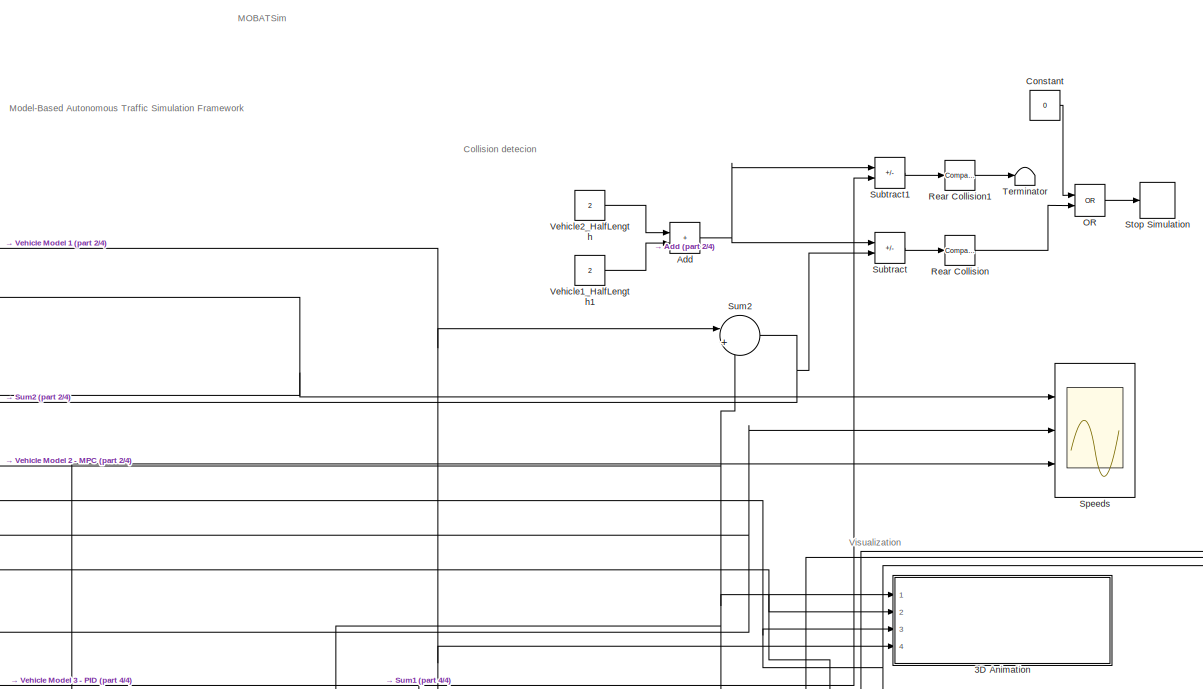
[diagram: root canvas - part 1/4, top center region]
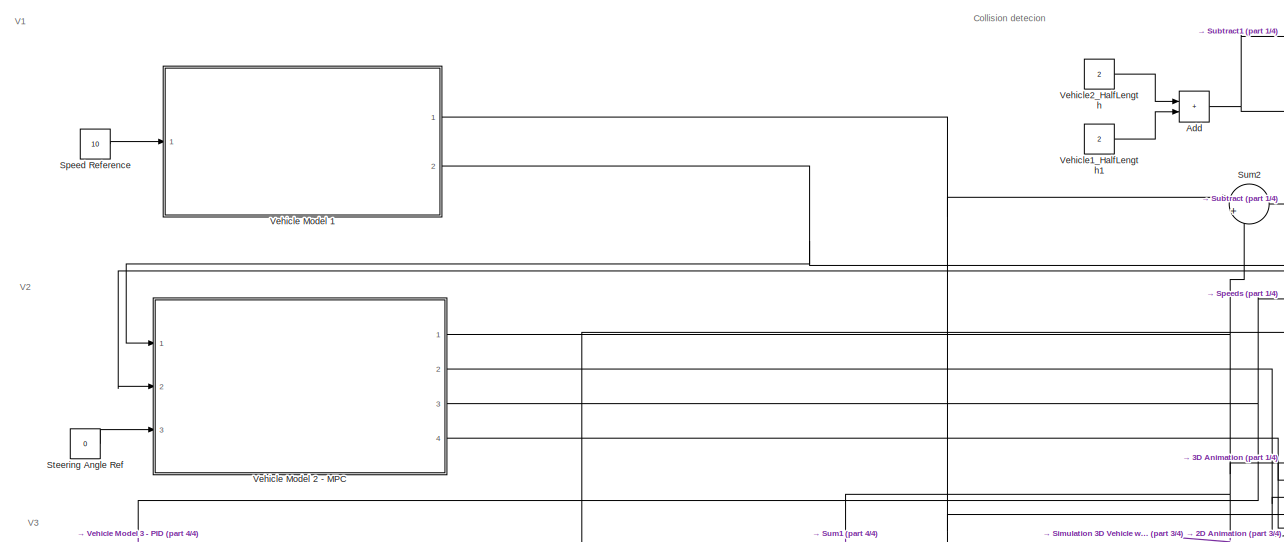
[diagram: root canvas - part 2/4, top left region]
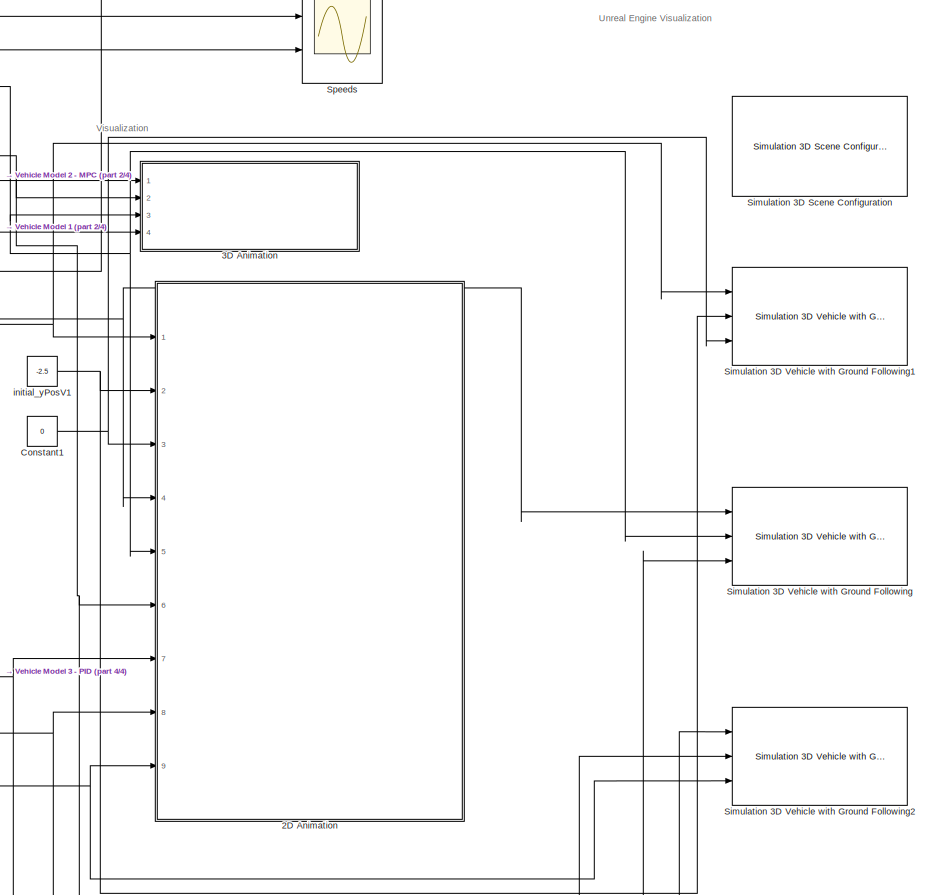
[diagram: root canvas - part 3/4, middle right region]
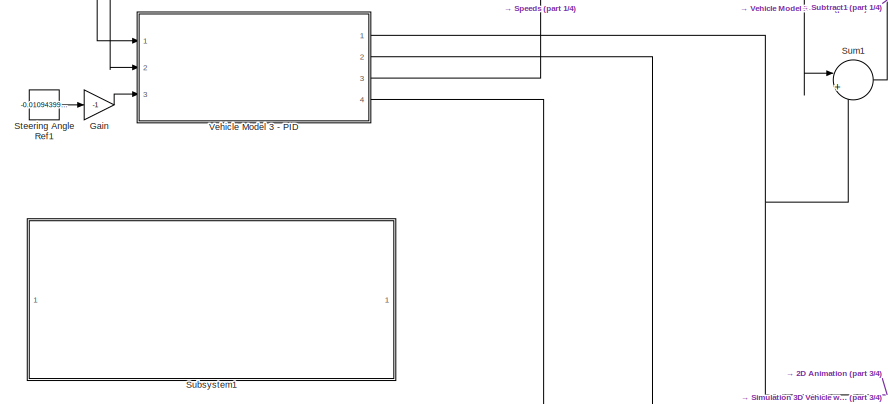
[diagram: root canvas - part 4/4, middle left region]
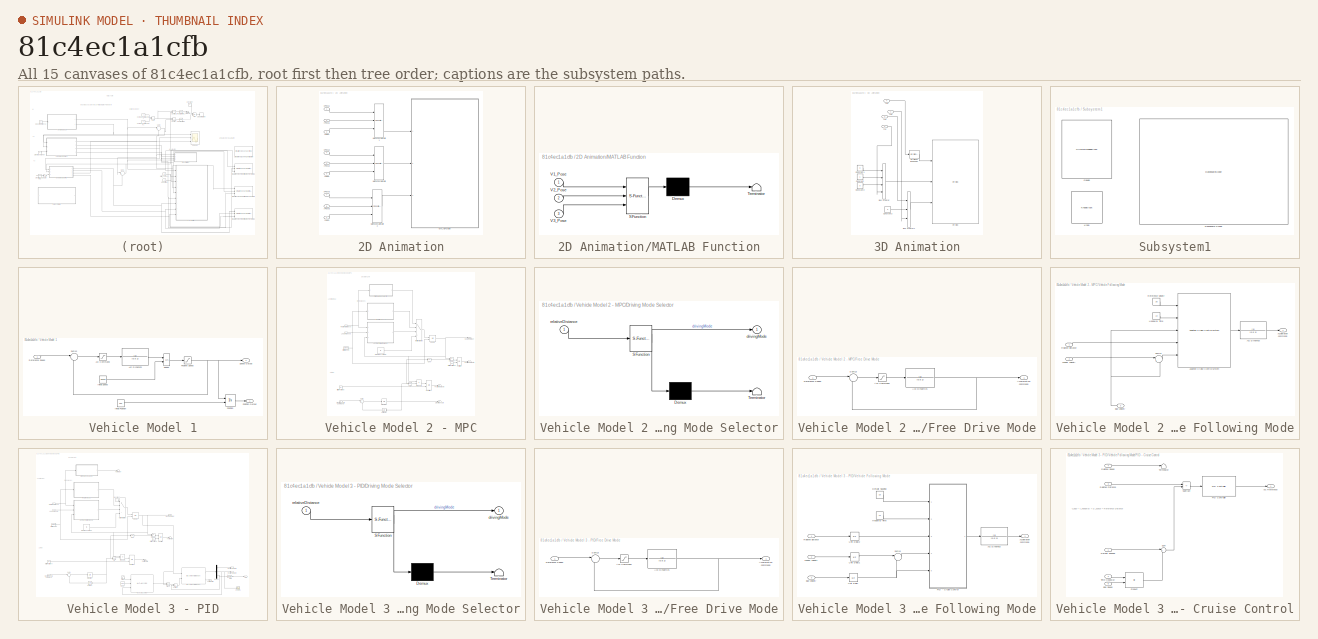
[diagram: thumbnail index - all 15 canvases of the model, root first then tree order]
MODEL slx_81c4ec1a1cfb
KIND model
CONFIG AbsTol = auto
CONFIG EnableMultiTasking = off
CONFIG FixedStep = auto
CONFIG MaxStep = auto
CONFIG MinStep = auto
CONFIG RelTol = 1e-3
CONFIG SampleTimeConstraint = Unconstrained
CONFIG SolverName = VariableStepAuto
CONFIG StartTime = 0.0
CONFIG StopTime = 50
BLOCK [SubSystem] 2D Animation
  Commented = on
  Ports = [9]
  RequestExecContextInheritance = off
  SystemSampleTime = 0.02
  TreatAsAtomicUnit = on
BLOCK [SubSystem] 2D Animation/MATLAB Function
  ErrorFcn = Stateflow.Translate.translate
  PermitHierarchicalResolution = ExplicitOnly
  Ports = [3]
  RequestExecContextInheritance = off
  SFBlockType = MATLAB Function
  TreatAsAtomicUnit = on
BLOCK [Demux] 2D Animation/MATLAB Function/ Demux 
  Outputs = 1
  Ports = [1, 1]
BLOCK [S-Function] 2D Animation/MATLAB Function/ SFunction 
  EnableBusSupport = on
  FunctionName = sf_sfun
  PortCounts = [3 1]
  Ports = [3, 1]
  SFcnIsStateOwnerBlock = off
  SFunctionDeploymentMode = off
  Tag = Stateflow S-Function 2
BLOCK [Terminator] 2D Animation/MATLAB Function/ Terminator 
BLOCK [Inport] 2D Animation/MATLAB Function/V1_Pose
BLOCK [Inport] 2D Animation/MATLAB Function/V2_Pose
  Port = 2
BLOCK [Inport] 2D Animation/MATLAB Function/V3_Pose
  Port = 3
BLOCK [Concatenate] 2D Animation/Matrix Concatenate
  ConcatenateDimension = 2
  NumInputs = 3
  Ports = [3, 1]
BLOCK [Concatenate] 2D Animation/Matrix Concatenate1
  ConcatenateDimension = 2
  NumInputs = 3
  Ports = [3, 1]
BLOCK [Concatenate] 2D Animation/Matrix Concatenate2
  ConcatenateDimension = 2
  NumInputs = 3
  Ports = [3, 1]
BLOCK [Inport] 2D Animation/xPosV1
BLOCK [Inport] 2D Animation/xPosV2
  Port = 4
BLOCK [Inport] 2D Animation/xPosV3
  Port = 7
BLOCK [Inport] 2D Animation/yPosV1
  Port = 2
BLOCK [Inport] 2D Animation/yPosV2
  Port = 5
BLOCK [Inport] 2D Animation/yPosV3
  Port = 8
BLOCK [Inport] 2D Animation/yawV1
  Port = 3
BLOCK [Inport] 2D Animation/yawV2
  Port = 6
BLOCK [Inport] 2D Animation/yawV3
  Port = 9
BLOCK [SubSystem] 3D Animation
  Commented = on
  Ports = [4]
  RequestExecContextInheritance = off
BLOCK [BusCreator] 3D Animation/Bus Creator
  DisplayOption = bar
  InheritFromInputs = on
  Inputs = 4
  Ports = [4, 1]
BLOCK [BusCreator] 3D Animation/Bus Creator1
  DisplayOption = bar
  InheritFromInputs = on
  Inputs = 3
  Ports = [3, 1]
BLOCK [Constant] 3D Animation/Constant
BLOCK [Constant] 3D Animation/Constant1
  Value = 0
BLOCK [Constant] 3D Animation/Constant2
  Value = 0
BLOCK [Constant] 3D Animation/Constant3
  Value = 0
BLOCK [Inport] 3D Animation/In1
  Port = 4
BLOCK [Inport] 3D Animation/In2
BLOCK [Inport] 3D Animation/In3
  Port = 3
BLOCK [Inport] 3D Animation/In4
  Port = 2
BLOCK [Reference] 3D Animation/VR Signal Expander  REF=vrlib/VR Signal Expander
  Ports = [1, 1]
  SourceBlock = vrlib/VR Signal Expander
  SourceProductBaseCode = SL
  SourceType = VR Signal Expander
BLOCK [Reference] 3D Animation/VR Sink  REF=vrlib/VR Sink
  InstantiateOnLoad = on
  Ports = [3]
  SourceBlock = vrlib/VR Sink
  SourceProductBaseCode = SL
  SourceType = Virtual Reality Sink
BLOCK [Sum] Add
  IconShape = rectangular
  Ports = [2, 1]
BLOCK [Constant] Constant
  Value = 0
BLOCK [Constant] Constant1
  Value = 0
BLOCK [Gain] Gain
  Gain = -1
BLOCK [Logic] OR
  AllPortsSameDT = off
  IconShape = distinctive
  Operator = OR
  OutDataTypeStr = boolean
  Ports = [2, 1]
BLOCK [Reference] Rear Collision  REF=simulink/Logic and Bit
Operations/Compare
To Constant
  Ports = [1, 1]
  SourceBlock = simulink/Logic and Bit\nOperations/Compare\nTo Constant
  SourceProductBaseCode = SL
  SourceType = Compare To Constant
BLOCK [Reference] Rear Collision1  REF=simulink/Logic and Bit
Operations/Compare
To Constant
  Ports = [1, 1]
  SourceBlock = simulink/Logic and Bit\nOperations/Compare\nTo Constant
  SourceProductBaseCode = SL
  SourceType = Compare To Constant
BLOCK [Reference] Simulation 3D Scene Configuration  REF=sim3dlib/Simulation 3D Scene Configuration
  Ports = []
  Priority = 0
  SourceBlock = sim3dlib/Simulation 3D Scene Configuration
  SourceProductBaseCode = DR,UV,VE
  SourceType = Simulation 3D Scene Configuration
BLOCK [Reference] Simulation 3D Vehicle with Ground Following  REF=sim3dautolib/Simulation 3D Vehicle with Ground Following
  Ports = [3]
  Priority = -1
  SourceBlock = sim3dautolib/Simulation 3D Vehicle with Ground Following
  SourceProductBaseCode = DR,UV,VE
  SourceType = Simulation 3D Vehicle with Ground Following
BLOCK [Reference] Simulation 3D Vehicle with Ground Following1  REF=sim3dautolib/Simulation 3D Vehicle with Ground Following
  Ports = [3]
  Priority = -1
  SourceBlock = sim3dautolib/Simulation 3D Vehicle with Ground Following
  SourceProductBaseCode = DR,UV,VE
  SourceType = Simulation 3D Vehicle with Ground Following
BLOCK [Reference] Simulation 3D Vehicle with Ground Following2  REF=sim3dautolib/Simulation 3D Vehicle with Ground Following
  Ports = [3]
  Priority = -1
  SourceBlock = sim3dautolib/Simulation 3D Vehicle with Ground Following
  SourceProductBaseCode = DR,UV,VE
  SourceType = Simulation 3D Vehicle with Ground Following
BLOCK [Constant] Speed Reference
  Value = 10
BLOCK [Scope] Speeds
  Floating = off
  NumInputPorts = 3
  Ports = [3]
  ScopeSpecificationString = Simulink.scopes.TimeScopeBlockCfg('CurrentConfiguration', extmgr.ConfigurationSet(extmgr.Configuration('Core','General UI',true),extmgr.Configuration('Core','Source UI',true),extmgr.Configuration('Sources','WiredSimulink',true,'DataLoggingVariableName','ScopeData2'),extmgr.Configuration('Visuals','Time Domain',true,'SerializedDisplays',{struct('MinYLimReal','-7.415','MaxYLimReal','66.735','YLabelR...<+1473ch>
BLOCK [Constant] Steering Angle Ref
  Value = 0
BLOCK [Constant] Steering Angle Ref1
  Value = -0.01094399007161456
BLOCK [Stop] Stop Simulation
BLOCK [SubSystem] Subsystem1
  Ports = []
  RequestExecContextInheritance = off
BLOCK [DashboardScope] Subsystem1/Dashboard Scope
BLOCK [CircularGaugeBlock] Subsystem1/Gauge
BLOCK [KnobBlock] Subsystem1/Knob
  ScaleMax = 0.2
  ScaleMin = -0.2
BLOCK [Sum] Subtract
  IconShape = rectangular
  Inputs = -+
  Ports = [2, 1]
BLOCK [Sum] Subtract1
  IconShape = rectangular
  Inputs = -+
  Ports = [2, 1]
BLOCK [Sum] Sum1
  Inputs = |+-
  Ports = [2, 1]
BLOCK [Sum] Sum2
  Inputs = |+-
  Ports = [2, 1]
BLOCK [Terminator] Terminator
BLOCK [SubSystem] Vehicle Model 1
  Ports = [1, 2]
  RequestExecContextInheritance = off
BLOCK [Saturate] Vehicle Model 1/Acc Command
  LowerLimit = -3
  UpperLimit = 2
BLOCK [TransferFcn] Vehicle Model 1/Acc Dynamics
  Denominator = [0.5 1]
BLOCK [Constant] Vehicle Model 1/Initial Position
  Value = Pos
BLOCK [Constant] Vehicle Model 1/Initial Speed
  Value = Speed
BLOCK [Integrator] Vehicle Model 1/Position
  InitialConditionSource = external
  Ports = [2, 1]
BLOCK [Outport] Vehicle Model 1/Position Output
  VectorParamsAs1DForOutWhenUnconnected = off
BLOCK [Saturate] Vehicle Model 1/Positive Speed
  LowerLimit = 0
  UpperLimit = inf
BLOCK [Inport] Vehicle Model 1/Reference Speed
BLOCK [Integrator] Vehicle Model 1/Speed
  InitialConditionSource = external
  Ports = [2, 1]
BLOCK [Outport] Vehicle Model 1/Speed Output
  Port = 2
  VectorParamsAs1DForOutWhenUnconnected = off
BLOCK [Sum] Vehicle Model 1/Sum13
  Inputs = |+-
  Ports = [2, 1]
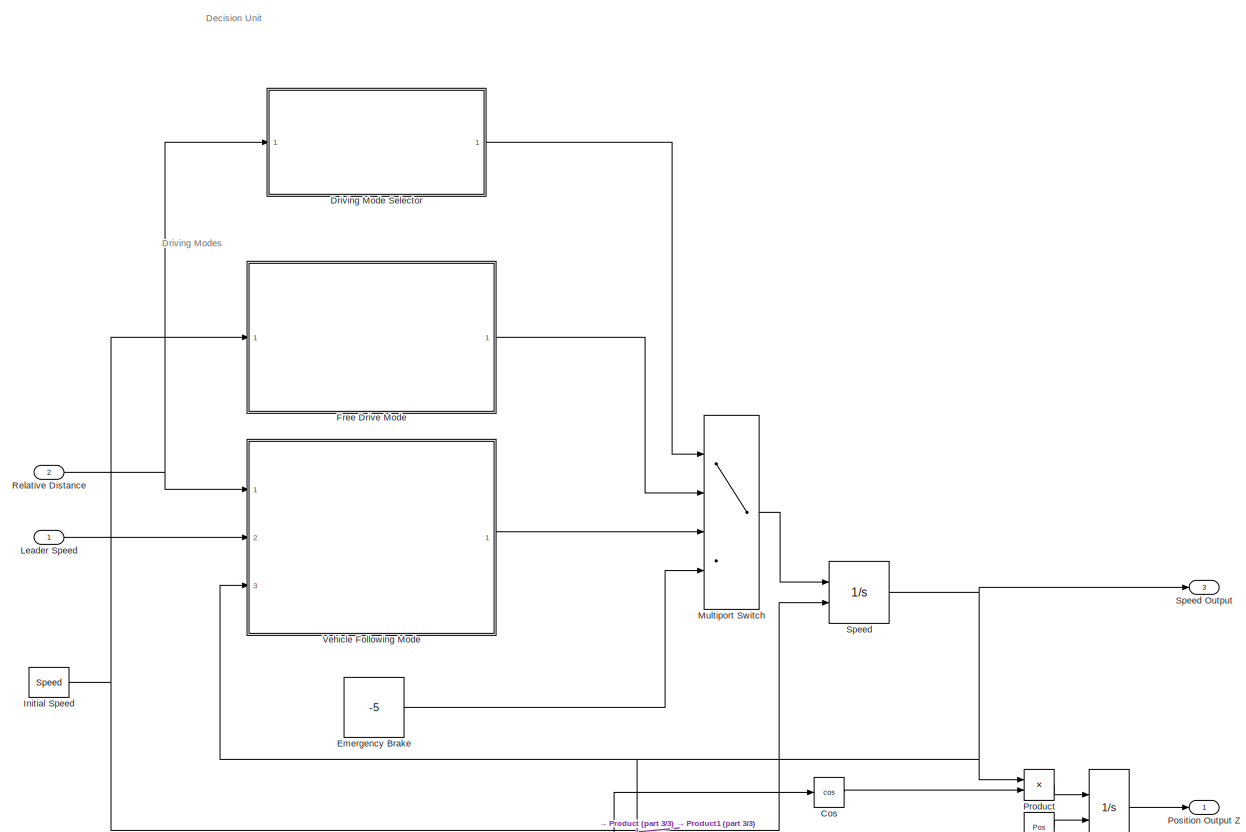
[diagram: Vehicle Model 2 - MPC - part 1/3, full width, top band]
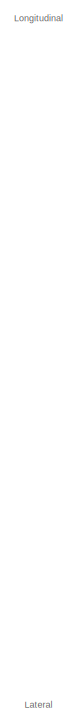
[diagram: Vehicle Model 2 - MPC - part 2/3, middle left region]
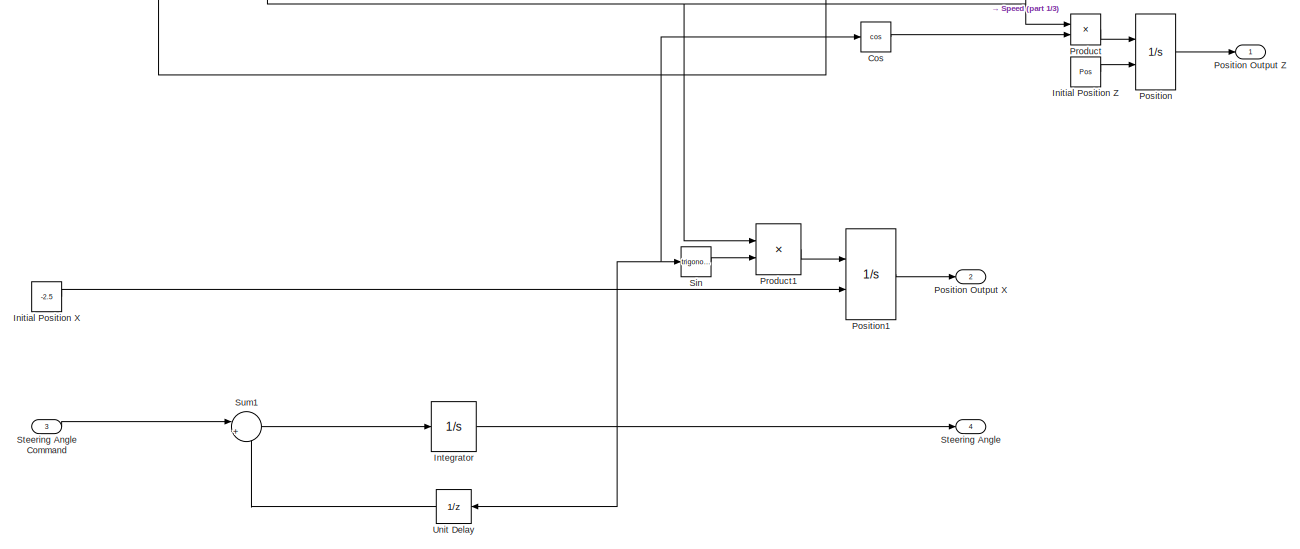
[diagram: Vehicle Model 2 - MPC - part 3/3, full width, bottom band]
BLOCK [SubSystem] Vehicle Model 2 - MPC
  Ports = [3, 4]
  RequestExecContextInheritance = off
BLOCK [Trigonometry] Vehicle Model 2 - MPC/Cos
  Operator = cos
  Ports = [1, 1]
BLOCK [SubSystem] Vehicle Model 2 - MPC/Driving Mode Selector
  ErrorFcn = Stateflow.Translate.translate
  PermitHierarchicalResolution = ExplicitOnly
  Ports = [1, 1]
  RequestExecContextInheritance = off
  SFBlockType = Chart
  TreatAsAtomicUnit = on
BLOCK [Demux] Vehicle Model 2 - MPC/Driving Mode Selector/ Demux 
  Outputs = 1
  Ports = [1, 1]
BLOCK [S-Function] Vehicle Model 2 - MPC/Driving Mode Selector/ SFunction 
  EnableBusSupport = on
  FunctionName = sf_sfun
  PortCounts = [1 2]
  Ports = [1, 2]
  SFcnIsStateOwnerBlock = off
  SFunctionDeploymentMode = off
  Tag = Stateflow S-Function 3
BLOCK [Terminator] Vehicle Model 2 - MPC/Driving Mode Selector/ Terminator 
BLOCK [Outport] Vehicle Model 2 - MPC/Driving Mode Selector/drivingMode
BLOCK [Inport] Vehicle Model 2 - MPC/Driving Mode Selector/relativeDistance
BLOCK [Constant] Vehicle Model 2 - MPC/Emergency Brake
  Value = -5
BLOCK [SubSystem] Vehicle Model 2 - MPC/Free Drive Mode
  Ports = [1, 1]
  RequestExecContextInheritance = off
BLOCK [Saturate] Vehicle Model 2 - MPC/Free Drive Mode/Acc Command
  LowerLimit = -3
  UpperLimit = 2
BLOCK [TransferFcn] Vehicle Model 2 - MPC/Free Drive Mode/Acc Dynamics
  Denominator = [0.5 1]
BLOCK [Outport] Vehicle Model 2 - MPC/Free Drive Mode/Acceleration command
BLOCK [Inport] Vehicle Model 2 - MPC/Free Drive Mode/Reference Speed
BLOCK [Sum] Vehicle Model 2 - MPC/Free Drive Mode/Sum13
  Inputs = |+-
  Ports = [2, 1]
BLOCK [Constant] Vehicle Model 2 - MPC/Initial Position X
  Value = -2.5
BLOCK [Constant] Vehicle Model 2 - MPC/Initial Position Z
  Value = Pos
BLOCK [Constant] Vehicle Model 2 - MPC/Initial Speed
  Value = Speed
BLOCK [Integrator] Vehicle Model 2 - MPC/Integrator
  Ports = [1, 1]
BLOCK [Inport] Vehicle Model 2 - MPC/Leader Speed
BLOCK [MultiPortSwitch] Vehicle Model 2 - MPC/Multiport Switch
  InputSameDT = off
  Ports = [4, 1]
  SaturateOnIntegerOverflow = off
BLOCK [Integrator] Vehicle Model 2 - MPC/Position
  InitialConditionSource = external
  Ports = [2, 1]
BLOCK [Outport] Vehicle Model 2 - MPC/Position Output X
  Port = 2
  VectorParamsAs1DForOutWhenUnconnected = off
BLOCK [Outport] Vehicle Model 2 - MPC/Position Output Z
  VectorParamsAs1DForOutWhenUnconnected = off
BLOCK [Integrator] Vehicle Model 2 - MPC/Position1
  InitialConditionSource = external
  Ports = [2, 1]
BLOCK [Product] Vehicle Model 2 - MPC/Product
  Ports = [2, 1]
BLOCK [Product] Vehicle Model 2 - MPC/Product1
  Ports = [2, 1]
BLOCK [Inport] Vehicle Model 2 - MPC/Relative Distance
  Port = 2
BLOCK [Trigonometry] Vehicle Model 2 - MPC/Sin
  Ports = [1, 1]
BLOCK [Integrator] Vehicle Model 2 - MPC/Speed
  InitialConditionSource = external
  LimitOutput = on
  LowerSaturationLimit = 0
  Ports = [2, 1]
BLOCK [Outport] Vehicle Model 2 - MPC/Speed Output
  Port = 3
  VectorParamsAs1DForOutWhenUnconnected = off
BLOCK [Outport] Vehicle Model 2 - MPC/Steering Angle
  Port = 4
  VectorParamsAs1DForOutWhenUnconnected = off
BLOCK [Inport] Vehicle Model 2 - MPC/Steering Angle Command
  Port = 3
BLOCK [Sum] Vehicle Model 2 - MPC/Sum1
  Inputs = |+-
  Ports = [2, 1]
BLOCK [UnitDelay] Vehicle Model 2 - MPC/Unit Delay
  HasFrameUpgradeWarning = on
  NameLocation = top
  SampleTime = -1
BLOCK [SubSystem] Vehicle Model 2 - MPC/Vehicle Following Mode
  Ports = [3, 1]
  RequestExecContextInheritance = off
BLOCK [TransferFcn] Vehicle Model 2 - MPC/Vehicle Following Mode/Acc Dynamics
  Denominator = [0.5 1]
BLOCK [Outport] Vehicle Model 2 - MPC/Vehicle Following Mode/Acceleration command
BLOCK [Reference] Vehicle Model 2 - MPC/Vehicle Following Mode/Adaptive Cruise Control System  REF=mpcadaslib/Adaptive Cruise Control System
  Ports = [5, 1]
  SourceBlock = mpcadaslib/Adaptive Cruise Control System
  SourceProductBaseCode = MP
  SourceType = Adaptive cruise control (ACC) system
BLOCK [Inport] Vehicle Model 2 - MPC/Vehicle Following Mode/Ego velocity
  Port = 3
BLOCK [Constant] Vehicle Model 2 - MPC/Vehicle Following Mode/Headway Time
  Value = 1.4
BLOCK [Inport] Vehicle Model 2 - MPC/Vehicle Following Mode/Leader velocity
  Port = 2
BLOCK [Constant] Vehicle Model 2 - MPC/Vehicle Following Mode/Reference Velocity
  Value = 30
BLOCK [Inport] Vehicle Model 2 - MPC/Vehicle Following Mode/Relative distance
BLOCK [Sum] Vehicle Model 2 - MPC/Vehicle Following Mode/Sum13
  Inputs = |+-
  Ports = [2, 1]
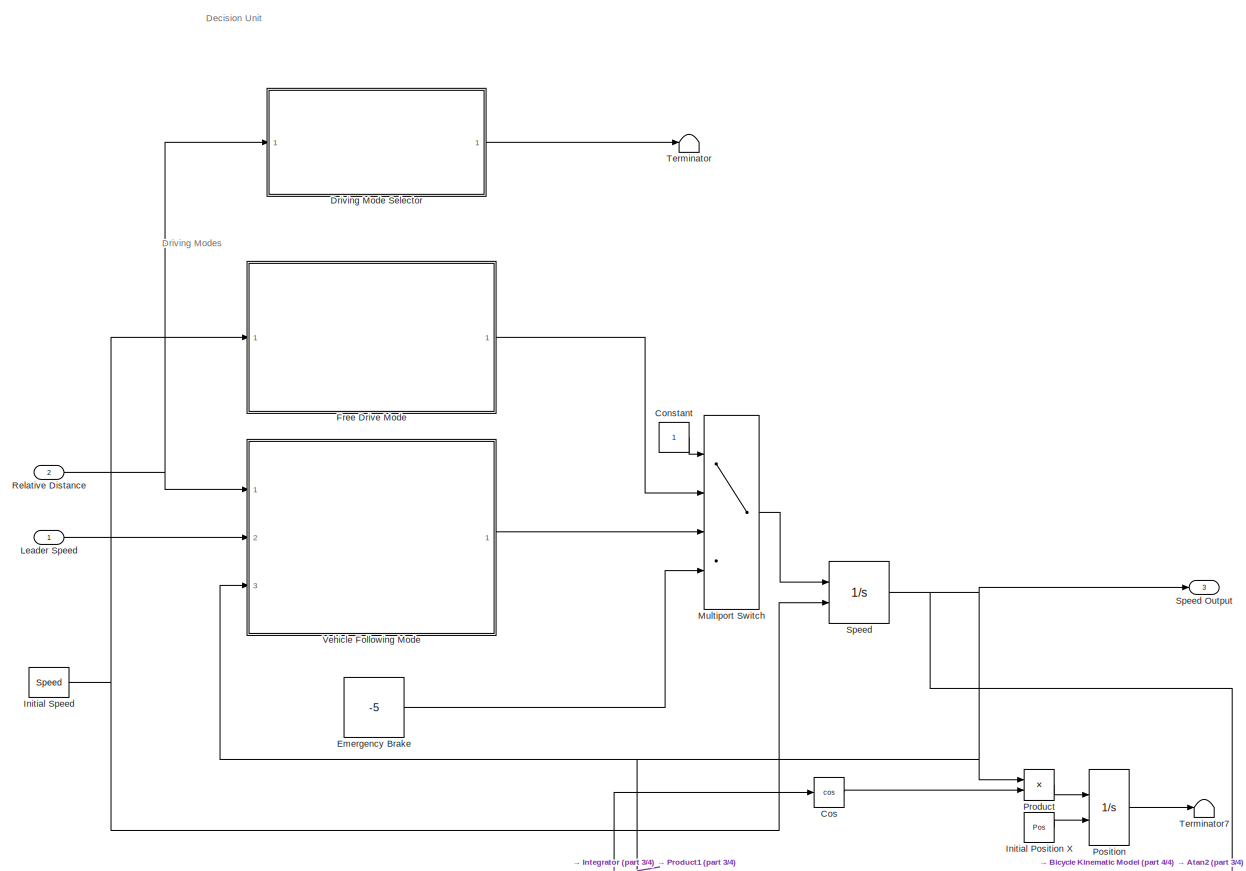
[diagram: Vehicle Model 3 - PID - part 1/4, top center region]
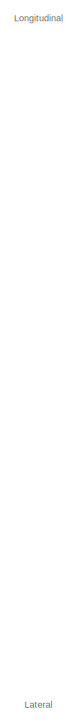
[diagram: Vehicle Model 3 - PID - part 2/4, middle left region]
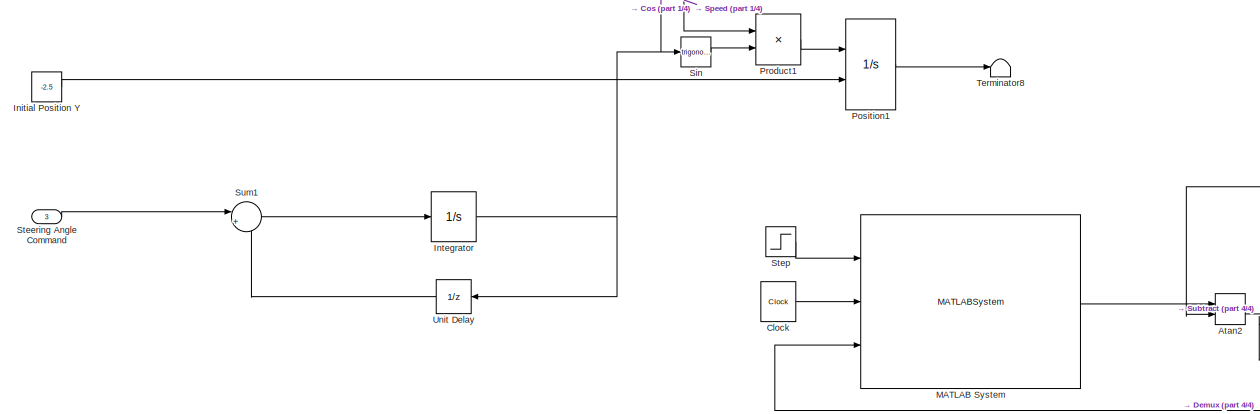
[diagram: Vehicle Model 3 - PID - part 3/4, bottom center region]
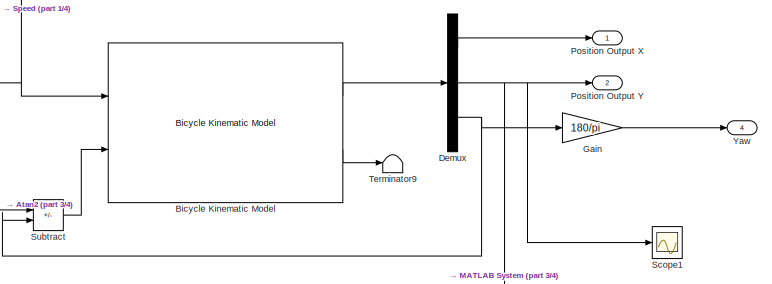
[diagram: Vehicle Model 3 - PID - part 4/4, bottom right region]
BLOCK [SubSystem] Vehicle Model 3 - PID
  Ports = [3, 4]
  RequestExecContextInheritance = off
BLOCK [Trigonometry] Vehicle Model 3 - PID/Atan2
  Operator = atan2
  Ports = [2, 1]
BLOCK [Reference] Vehicle Model 3 - PID/Bicycle Kinematic Model  REF=robotmobilelib/Bicycle Kinematic Model
  Ports = [2, 2]
  SourceBlock = robotmobilelib/Bicycle Kinematic Model
  SourceProductBaseCode = RO
  SourceType = Bicycle Kinematic Model
BLOCK [Clock] Vehicle Model 3 - PID/Clock
BLOCK [Constant] Vehicle Model 3 - PID/Constant
BLOCK [Trigonometry] Vehicle Model 3 - PID/Cos
  Operator = cos
  Ports = [1, 1]
BLOCK [Demux] Vehicle Model 3 - PID/Demux
  Outputs = 3
  Ports = [1, 3]
BLOCK [SubSystem] Vehicle Model 3 - PID/Driving Mode Selector
  ErrorFcn = Stateflow.Translate.translate
  PermitHierarchicalResolution = ExplicitOnly
  Ports = [1, 1]
  RequestExecContextInheritance = off
  SFBlockType = Chart
  TreatAsAtomicUnit = on
BLOCK [Demux] Vehicle Model 3 - PID/Driving Mode Selector/ Demux 
  Outputs = 1
  Ports = [1, 1]
BLOCK [S-Function] Vehicle Model 3 - PID/Driving Mode Selector/ SFunction 
  EnableBusSupport = on
  FunctionName = sf_sfun
  PortCounts = [1 2]
  Ports = [1, 2]
  SFcnIsStateOwnerBlock = off
  SFunctionDeploymentMode = off
  Tag = Stateflow S-Function 1
BLOCK [Terminator] Vehicle Model 3 - PID/Driving Mode Selector/ Terminator 
BLOCK [Outport] Vehicle Model 3 - PID/Driving Mode Selector/drivingMode
BLOCK [Inport] Vehicle Model 3 - PID/Driving Mode Selector/relativeDistance
BLOCK [Constant] Vehicle Model 3 - PID/Emergency Brake
  Value = -5
BLOCK [SubSystem] Vehicle Model 3 - PID/Free Drive Mode
  Ports = [1, 1]
  RequestExecContextInheritance = off
BLOCK [Saturate] Vehicle Model 3 - PID/Free Drive Mode/Acc Command
  LowerLimit = -3
  UpperLimit = 2
BLOCK [TransferFcn] Vehicle Model 3 - PID/Free Drive Mode/Acc Dynamics
  Denominator = [0.5 1]
BLOCK [Outport] Vehicle Model 3 - PID/Free Drive Mode/Acceleration command
BLOCK [Inport] Vehicle Model 3 - PID/Free Drive Mode/Reference Speed
BLOCK [Sum] Vehicle Model 3 - PID/Free Drive Mode/Sum13
  Inputs = |+-
  Ports = [2, 1]
BLOCK [Gain] Vehicle Model 3 - PID/Gain
  Gain = 180/pi
BLOCK [Constant] Vehicle Model 3 - PID/Initial Position X
  Value = Pos
BLOCK [Constant] Vehicle Model 3 - PID/Initial Position Y
  Value = -2.5
BLOCK [Constant] Vehicle Model 3 - PID/Initial Speed
  Value = Speed
BLOCK [Integrator] Vehicle Model 3 - PID/Integrator
  Ports = [1, 1]
BLOCK [Inport] Vehicle Model 3 - PID/Leader Speed
BLOCK [MATLABSystem] Vehicle Model 3 - PID/MATLAB System
  MaskDisplay = disp('LaneChanger');\nport_label('input',1,'flag');\nport_label('input',2,'clock');\nport_label('input',3,'y');\nport_label('output',1,'latSpeed');
  MaskType = LaneChanger
  Ports = [3, 1]
  SimulateUsing = Interpreted execution
  System = LaneChanger
BLOCK [MultiPortSwitch] Vehicle Model 3 - PID/Multiport Switch
  InputSameDT = off
  Ports = [4, 1]
  SaturateOnIntegerOverflow = off
BLOCK [Integrator] Vehicle Model 3 - PID/Position
  InitialConditionSource = external
  Ports = [2, 1]
BLOCK [Outport] Vehicle Model 3 - PID/Position Output X
  VectorParamsAs1DForOutWhenUnconnected = off
BLOCK [Outport] Vehicle Model 3 - PID/Position Output Y
  Port = 2
  VectorParamsAs1DForOutWhenUnconnected = off
BLOCK [Integrator] Vehicle Model 3 - PID/Position1
  InitialConditionSource = external
  Ports = [2, 1]
BLOCK [Product] Vehicle Model 3 - PID/Product
  Ports = [2, 1]
BLOCK [Product] Vehicle Model 3 - PID/Product1
  Ports = [2, 1]
BLOCK [Inport] Vehicle Model 3 - PID/Relative Distance
  Port = 2
BLOCK [Scope] Vehicle Model 3 - PID/Scope1
  Floating = off
  NumInputPorts = 1
  Ports = [1]
  ScopeSpecificationString = Simulink.scopes.TimeScopeBlockCfg('CurrentConfiguration', extmgr.ConfigurationSet(extmgr.Configuration('Core','General UI',true),extmgr.Configuration('Core','Source UI',true),extmgr.Configuration('Sources','WiredSimulink',true,'DataLoggingVariableName','ScopeData2'),extmgr.Configuration('Visuals','Time Domain',true,'SerializedDisplays',{struct('MinYLimReal','-3.62379','MaxYLimReal','2.61411','YLab...<+1366ch>
BLOCK [Trigonometry] Vehicle Model 3 - PID/Sin
  Ports = [1, 1]
BLOCK [Integrator] Vehicle Model 3 - PID/Speed
  InitialConditionSource = external
  LimitOutput = on
  LowerSaturationLimit = 0
  Ports = [2, 1]
  UpperSaturationLimit = 12
BLOCK [Outport] Vehicle Model 3 - PID/Speed Output
  Port = 3
  VectorParamsAs1DForOutWhenUnconnected = off
BLOCK [Inport] Vehicle Model 3 - PID/Steering Angle Command
  Port = 3
BLOCK [Step] Vehicle Model 3 - PID/Step
  SampleTime = 0
  Time = 3
BLOCK [Sum] Vehicle Model 3 - PID/Subtract
  IconShape = rectangular
  Inputs = +-
  Ports = [2, 1]
BLOCK [Sum] Vehicle Model 3 - PID/Sum1
  Inputs = |+-
  Ports = [2, 1]
BLOCK [Terminator] Vehicle Model 3 - PID/Terminator
BLOCK [Terminator] Vehicle Model 3 - PID/Terminator7
BLOCK [Terminator] Vehicle Model 3 - PID/Terminator8
BLOCK [Terminator] Vehicle Model 3 - PID/Terminator9
BLOCK [UnitDelay] Vehicle Model 3 - PID/Unit Delay
  HasFrameUpgradeWarning = on
  NameLocation = top
  SampleTime = -1
BLOCK [SubSystem] Vehicle Model 3 - PID/Vehicle Following Mode
  Ports = [3, 1]
  RequestExecContextInheritance = off
BLOCK [TransferFcn] Vehicle Model 3 - PID/Vehicle Following Mode/Acc Dynamics
  Denominator = [0.5 1]
BLOCK [Outport] Vehicle Model 3 - PID/Vehicle Following Mode/Acceleration command
BLOCK [Constant] Vehicle Model 3 - PID/Vehicle Following Mode/Default Spacing
  Value = 10
BLOCK [Inport] Vehicle Model 3 - PID/Vehicle Following Mode/Ego velocity
  NameLocation = top
  Port = 3
BLOCK [Constant] Vehicle Model 3 - PID/Vehicle Following Mode/Headway Time
  Value = 1.4
BLOCK [Inport] Vehicle Model 3 - PID/Vehicle Following Mode/Leader velocity
  Port = 2
BLOCK [SubSystem] Vehicle Model 3 - PID/Vehicle Following Mode/PID - Cruise Control
  Ports = [5, 1]
  RequestExecContextInheritance = off
BLOCK [Outport] Vehicle Model 3 - PID/Vehicle Following Mode/PID - Cruise Control/Acc Reference
BLOCK [Inport] Vehicle Model 3 - PID/Vehicle Following Mode/PID - Cruise Control/Default Spacing
BLOCK [Inport] Vehicle Model 3 - PID/Vehicle Following Mode/PID - Cruise Control/Ego Speed
  Port = 5
BLOCK [Reference] Vehicle Model 3 - PID/Vehicle Following Mode/PID - Cruise Control/PID Controller  REF=pid_lib/PID Controller
  Ports = [1, 1]
  SourceBlock = pid_lib/PID Controller
  SourceProductBaseCode = SL
  SourceType = PID 1dof
BLOCK [Product] Vehicle Model 3 - PID/Vehicle Following Mode/PID - Cruise Control/Product
  Ports = [2, 1]
BLOCK [Inport] Vehicle Model 3 - PID/Vehicle Following Mode/PID - Cruise Control/Relative Distance
  Port = 3
BLOCK [Inport] Vehicle Model 3 - PID/Vehicle Following Mode/PID - Cruise Control/Relative Speed
  Port = 4
BLOCK [Sum] Vehicle Model 3 - PID/Vehicle Following Mode/PID - Cruise Control/Subtract
  IconShape = rectangular
  Inputs = +-
  Ports = [2, 1]
BLOCK [Sum] Vehicle Model 3 - PID/Vehicle Following Mode/PID - Cruise Control/Sum
  Inputs = |++
  Ports = [2, 1]
BLOCK [Terminator] Vehicle Model 3 - PID/Vehicle Following Mode/PID - Cruise Control/Terminator
BLOCK [Inport] Vehicle Model 3 - PID/Vehicle Following Mode/PID - Cruise Control/Time Headway
  Port = 2
BLOCK [Inport] Vehicle Model 3 - PID/Vehicle Following Mode/Relative distance
BLOCK [Sum] Vehicle Model 3 - PID/Vehicle Following Mode/Sum13
  Inputs = |+-
  Ports = [2, 1]
BLOCK [UnitDelay] Vehicle Model 3 - PID/Vehicle Following Mode/Unit Delay
  HasFrameUpgradeWarning = on
  SampleTime = -1
BLOCK [UnitDelay] Vehicle Model 3 - PID/Vehicle Following Mode/Unit Delay1
  HasFrameUpgradeWarning = on
  SampleTime = -1
BLOCK [UnitDelay] Vehicle Model 3 - PID/Vehicle Following Mode/Unit Delay2
  HasFrameUpgradeWarning = on
  SampleTime = -1
BLOCK [Outport] Vehicle Model 3 - PID/Yaw
  Port = 4
  VectorParamsAs1DForOutWhenUnconnected = off
BLOCK [Constant] Vehicle1_HalfLength1
  Value = 2
BLOCK [Constant] Vehicle2_HalfLength
  Value = 2
BLOCK [Constant] initial_yPosV1
  Value = -2.5
ANNOTATION (root): MOBATSim
ANNOTATION (root): Model-Based Autonomous Traffic Simulation Framework
ANNOTATION (root): Collision detecion
ANNOTATION (root): Unreal Engine Visualization
ANNOTATION (root): V1
ANNOTATION (root): V2
ANNOTATION (root): V3
ANNOTATION (root): Visualization
ANNOTATION Vehicle Model 2 - MPC: Decision Unit
ANNOTATION Vehicle Model 2 - MPC: Driving Modes
ANNOTATION Vehicle Model 2 - MPC: Lateral
ANNOTATION Vehicle Model 2 - MPC: Longitudinal
ANNOTATION Vehicle Model 3 - PID: Decision Unit
ANNOTATION Vehicle Model 3 - PID: Driving Modes
ANNOTATION Vehicle Model 3 - PID: Lateral
ANNOTATION Vehicle Model 3 - PID: Longitudinal
ANNOTATION Vehicle Model 3 - PID/Vehicle Following Mode/PID - Cruise Control: V_ego * t_headway + D_space = Reference Distance
LINE 2D Animation/Matrix Concatenate1:1 -> 2D Animation/MATLAB Function:1
LINE 2D Animation/Matrix Concatenate2:1 -> 2D Animation/MATLAB Function:3
LINE 2D Animation/Matrix Concatenate:1 -> 2D Animation/MATLAB Function:2
LINE 2D Animation/xPosV1:1 -> 2D Animation/Matrix Concatenate1:1
LINE 2D Animation/xPosV2:1 -> 2D Animation/Matrix Concatenate:1
LINE 2D Animation/xPosV3:1 -> 2D Animation/Matrix Concatenate2:1
LINE 2D Animation/yPosV1:1 -> 2D Animation/Matrix Concatenate1:2
LINE 2D Animation/yPosV2:1 -> 2D Animation/Matrix Concatenate:2
LINE 2D Animation/yPosV3:1 -> 2D Animation/Matrix Concatenate2:2
LINE 2D Animation/yawV1:1 -> 2D Animation/Matrix Concatenate1:3
LINE 2D Animation/yawV2:1 -> 2D Animation/Matrix Concatenate:3
LINE 2D Animation/yawV3:1 -> 2D Animation/Matrix Concatenate2:3
LINE 3D Animation/Bus Creator1:1 -> 3D Animation/VR Sink:3
LINE 3D Animation/Bus Creator:1 -> 3D Animation/VR Sink:2
LINE 3D Animation/Constant1:1 -> 3D Animation/Bus Creator:1
LINE 3D Animation/Constant2:1 -> 3D Animation/Bus Creator:3
LINE 3D Animation/Constant3:1 -> 3D Animation/Bus Creator1:2
LINE 3D Animation/Constant:1 -> 3D Animation/Bus Creator:2
LINE 3D Animation/In1:1 -> 3D Animation/VR Signal Expander:1
LINE 3D Animation/In2:1 -> 3D Animation/Bus Creator1:3
LINE 3D Animation/In3:1 -> 3D Animation/Bus Creator1:1
LINE 3D Animation/In4:1 -> 3D Animation/Bus Creator:4
LINE 3D Animation/VR Signal Expander:1 -> 3D Animation/VR Sink:1
NET Add:1 -> Subtract1:1, Subtract:1
NET Constant1:1 -> 2D Animation:3, Simulation 3D Vehicle with Ground Following1:3
LINE Constant:1 -> OR:1
LINE Gain:1 -> Vehicle Model 3 - PID:3
LINE OR:1 -> Stop Simulation:1
LINE Rear Collision1:1 -> Terminator:1
LINE Rear Collision:1 -> OR:2
LINE Speed Reference:1 -> Vehicle Model 1:1
LINE Steering Angle Ref1:1 -> Gain:1
LINE Steering Angle Ref:1 -> Vehicle Model 2 - MPC:3
LINE Subtract1:1 -> Rear Collision1:1
LINE Subtract:1 -> Rear Collision:1
NET Sum1:1 -> Subtract1:2, Vehicle Model 3 - PID:2
NET Sum2:1 -> Subtract:2, Vehicle Model 2 - MPC:2
LINE Vehicle Model 1/Acc Command:1 -> Vehicle Model 1/Acc Dynamics:1
LINE Vehicle Model 1/Acc Dynamics:1 -> Vehicle Model 1/Speed:1
LINE Vehicle Model 1/Initial Position:1 -> Vehicle Model 1/Position:2
LINE Vehicle Model 1/Initial Speed:1 -> Vehicle Model 1/Speed:2
LINE Vehicle Model 1/Position:1 -> Vehicle Model 1/Position Output:1
NET Vehicle Model 1/Positive Speed:1 -> Vehicle Model 1/Position:1, Vehicle Model 1/Speed Output:1, Vehicle Model 1/Sum13:2
LINE Vehicle Model 1/Reference Speed:1 -> Vehicle Model 1/Sum13:1
LINE Vehicle Model 1/Speed:1 -> Vehicle Model 1/Positive Speed:1
LINE Vehicle Model 1/Sum13:1 -> Vehicle Model 1/Acc Command:1
NET Vehicle Model 1:1 -> 2D Animation:1, 3D Animation:4, Simulation 3D Vehicle with Ground Following1:1, Sum2:1
NET Vehicle Model 1:2 -> Speeds:1, Vehicle Model 2 - MPC:1
LINE Vehicle Model 2 - MPC/Cos:1 -> Vehicle Model 2 - MPC/Product:2
LINE Vehicle Model 2 - MPC/Driving Mode Selector:1 -> Vehicle Model 2 - MPC/Multiport Switch:1
LINE Vehicle Model 2 - MPC/Emergency Brake:1 -> Vehicle Model 2 - MPC/Multiport Switch:4
LINE Vehicle Model 2 - MPC/Free Drive Mode/Acc Command:1 -> Vehicle Model 2 - MPC/Free Drive Mode/Acc Dynamics:1
NET Vehicle Model 2 - MPC/Free Drive Mode/Acc Dynamics:1 -> Vehicle Model 2 - MPC/Free Drive Mode/Acceleration command:1, Vehicle Model 2 - MPC/Free Drive Mode/Sum13:2
LINE Vehicle Model 2 - MPC/Free Drive Mode/Reference Speed:1 -> Vehicle Model 2 - MPC/Free Drive Mode/Sum13:1
LINE Vehicle Model 2 - MPC/Free Drive Mode/Sum13:1 -> Vehicle Model 2 - MPC/Free Drive Mode/Acc Command:1
LINE Vehicle Model 2 - MPC/Free Drive Mode:1 -> Vehicle Model 2 - MPC/Multiport Switch:2
LINE Vehicle Model 2 - MPC/Initial Position X:1 -> Vehicle Model 2 - MPC/Position1:2
LINE Vehicle Model 2 - MPC/Initial Position Z:1 -> Vehicle Model 2 - MPC/Position:2
NET Vehicle Model 2 - MPC/Initial Speed:1 -> Vehicle Model 2 - MPC/Free Drive Mode:1, Vehicle Model 2 - MPC/Speed:2
NET Vehicle Model 2 - MPC/Integrator:1 -> Vehicle Model 2 - MPC/Cos:1, Vehicle Model 2 - MPC/Sin:1, Vehicle Model 2 - MPC/Steering Angle:1, Vehicle Model 2 - MPC/Unit Delay:1
LINE Vehicle Model 2 - MPC/Leader Speed:1 -> Vehicle Model 2 - MPC/Vehicle Following Mode:2
LINE Vehicle Model 2 - MPC/Multiport Switch:1 -> Vehicle Model 2 - MPC/Speed:1
LINE Vehicle Model 2 - MPC/Position1:1 -> Vehicle Model 2 - MPC/Position Output X:1
LINE Vehicle Model 2 - MPC/Position:1 -> Vehicle Model 2 - MPC/Position Output Z:1
LINE Vehicle Model 2 - MPC/Product1:1 -> Vehicle Model 2 - MPC/Position1:1
LINE Vehicle Model 2 - MPC/Product:1 -> Vehicle Model 2 - MPC/Position:1
NET Vehicle Model 2 - MPC/Relative Distance:1 -> Vehicle Model 2 - MPC/Driving Mode Selector:1, Vehicle Model 2 - MPC/Vehicle Following Mode:1
LINE Vehicle Model 2 - MPC/Sin:1 -> Vehicle Model 2 - MPC/Product1:2
NET Vehicle Model 2 - MPC/Speed:1 -> Vehicle Model 2 - MPC/Product1:1, Vehicle Model 2 - MPC/Product:1, Vehicle Model 2 - MPC/Speed Output:1, Vehicle Model 2 - MPC/Vehicle Following Mode:3
LINE Vehicle Model 2 - MPC/Steering Angle Command:1 -> Vehicle Model 2 - MPC/Sum1:1
LINE Vehicle Model 2 - MPC/Sum1:1 -> Vehicle Model 2 - MPC/Integrator:1
LINE Vehicle Model 2 - MPC/Unit Delay:1 -> Vehicle Model 2 - MPC/Sum1:2
LINE Vehicle Model 2 - MPC/Vehicle Following Mode/Acc Dynamics:1 -> Vehicle Model 2 - MPC/Vehicle Following Mode/Acceleration command:1
LINE Vehicle Model 2 - MPC/Vehicle Following Mode/Adaptive Cruise Control System:1 -> Vehicle Model 2 - MPC/Vehicle Following Mode/Acc Dynamics:1
NET Vehicle Model 2 - MPC/Vehicle Following Mode/Ego velocity:1 -> Vehicle Model 2 - MPC/Vehicle Following Mode/Adaptive Cruise Control System:3, Vehicle Model 2 - MPC/Vehicle Following Mode/Sum13:2
LINE Vehicle Model 2 - MPC/Vehicle Following Mode/Headway Time:1 -> Vehicle Model 2 - MPC/Vehicle Following Mode/Adaptive Cruise Control System:2
LINE Vehicle Model 2 - MPC/Vehicle Following Mode/Leader velocity:1 -> Vehicle Model 2 - MPC/Vehicle Following Mode/Sum13:1
LINE Vehicle Model 2 - MPC/Vehicle Following Mode/Reference Velocity:1 -> Vehicle Model 2 - MPC/Vehicle Following Mode/Adaptive Cruise Control System:1
LINE Vehicle Model 2 - MPC/Vehicle Following Mode/Relative distance:1 -> Vehicle Model 2 - MPC/Vehicle Following Mode/Adaptive Cruise Control System:4
LINE Vehicle Model 2 - MPC/Vehicle Following Mode/Sum13:1 -> Vehicle Model 2 - MPC/Vehicle Following Mode/Adaptive Cruise Control System:5
LINE Vehicle Model 2 - MPC/Vehicle Following Mode:1 -> Vehicle Model 2 - MPC/Multiport Switch:3
NET Vehicle Model 2 - MPC:1 -> 2D Animation:4, 3D Animation:1, Simulation 3D Vehicle with Ground Following:1, Sum1:1, Sum2:2
NET Vehicle Model 2 - MPC:2 -> 2D Animation:5, 3D Animation:3, Simulation 3D Vehicle with Ground Following:2
NET Vehicle Model 2 - MPC:3 -> Speeds:2, Vehicle Model 3 - PID:1
NET Vehicle Model 2 - MPC:4 -> 2D Animation:6, 3D Animation:2, Simulation 3D Vehicle with Ground Following:3
LINE Vehicle Model 3 - PID/Atan2:1 -> Vehicle Model 3 - PID/Subtract:1
LINE Vehicle Model 3 - PID/Bicycle Kinematic Model:1 -> Vehicle Model 3 - PID/Demux:1
LINE Vehicle Model 3 - PID/Bicycle Kinematic Model:2 -> Vehicle Model 3 - PID/Terminator9:1
LINE Vehicle Model 3 - PID/Clock:1 -> Vehicle Model 3 - PID/MATLAB System:2
LINE Vehicle Model 3 - PID/Constant:1 -> Vehicle Model 3 - PID/Multiport Switch:1
LINE Vehicle Model 3 - PID/Cos:1 -> Vehicle Model 3 - PID/Product:2
LINE Vehicle Model 3 - PID/Demux:1 -> Vehicle Model 3 - PID/Position Output X:1
NET Vehicle Model 3 - PID/Demux:2 -> Vehicle Model 3 - PID/MATLAB System:3, Vehicle Model 3 - PID/Position Output Y:1, Vehicle Model 3 - PID/Scope1:1
NET Vehicle Model 3 - PID/Demux:3 -> Vehicle Model 3 - PID/Gain:1, Vehicle Model 3 - PID/Subtract:2
LINE Vehicle Model 3 - PID/Driving Mode Selector:1 -> Vehicle Model 3 - PID/Terminator:1
LINE Vehicle Model 3 - PID/Emergency Brake:1 -> Vehicle Model 3 - PID/Multiport Switch:4
LINE Vehicle Model 3 - PID/Free Drive Mode/Acc Command:1 -> Vehicle Model 3 - PID/Free Drive Mode/Acc Dynamics:1
NET Vehicle Model 3 - PID/Free Drive Mode/Acc Dynamics:1 -> Vehicle Model 3 - PID/Free Drive Mode/Acceleration command:1, Vehicle Model 3 - PID/Free Drive Mode/Sum13:2
LINE Vehicle Model 3 - PID/Free Drive Mode/Reference Speed:1 -> Vehicle Model 3 - PID/Free Drive Mode/Sum13:1
LINE Vehicle Model 3 - PID/Free Drive Mode/Sum13:1 -> Vehicle Model 3 - PID/Free Drive Mode/Acc Command:1
LINE Vehicle Model 3 - PID/Free Drive Mode:1 -> Vehicle Model 3 - PID/Multiport Switch:2
LINE Vehicle Model 3 - PID/Gain:1 -> Vehicle Model 3 - PID/Yaw:1
LINE Vehicle Model 3 - PID/Initial Position X:1 -> Vehicle Model 3 - PID/Position:2
LINE Vehicle Model 3 - PID/Initial Position Y:1 -> Vehicle Model 3 - PID/Position1:2
NET Vehicle Model 3 - PID/Initial Speed:1 -> Vehicle Model 3 - PID/Free Drive Mode:1, Vehicle Model 3 - PID/Speed:2
NET Vehicle Model 3 - PID/Integrator:1 -> Vehicle Model 3 - PID/Cos:1, Vehicle Model 3 - PID/Sin:1, Vehicle Model 3 - PID/Unit Delay:1
LINE Vehicle Model 3 - PID/Leader Speed:1 -> Vehicle Model 3 - PID/Vehicle Following Mode:2
LINE Vehicle Model 3 - PID/MATLAB System:1 -> Vehicle Model 3 - PID/Atan2:1
LINE Vehicle Model 3 - PID/Multiport Switch:1 -> Vehicle Model 3 - PID/Speed:1
LINE Vehicle Model 3 - PID/Position1:1 -> Vehicle Model 3 - PID/Terminator8:1
LINE Vehicle Model 3 - PID/Position:1 -> Vehicle Model 3 - PID/Terminator7:1
LINE Vehicle Model 3 - PID/Product1:1 -> Vehicle Model 3 - PID/Position1:1
LINE Vehicle Model 3 - PID/Product:1 -> Vehicle Model 3 - PID/Position:1
NET Vehicle Model 3 - PID/Relative Distance:1 -> Vehicle Model 3 - PID/Driving Mode Selector:1, Vehicle Model 3 - PID/Vehicle Following Mode:1
LINE Vehicle Model 3 - PID/Sin:1 -> Vehicle Model 3 - PID/Product1:2
NET Vehicle Model 3 - PID/Speed:1 -> Vehicle Model 3 - PID/Atan2:2, Vehicle Model 3 - PID/Bicycle Kinematic Model:1, Vehicle Model 3 - PID/Product1:1, Vehicle Model 3 - PID/Product:1, Vehicle Model 3 - PID/Speed Output:1, Vehicle Model 3 - PID/Vehicle Following Mode:3
LINE Vehicle Model 3 - PID/Steering Angle Command:1 -> Vehicle Model 3 - PID/Sum1:1
LINE Vehicle Model 3 - PID/Step:1 -> Vehicle Model 3 - PID/MATLAB System:1
LINE Vehicle Model 3 - PID/Subtract:1 -> Vehicle Model 3 - PID/Bicycle Kinematic Model:2
LINE Vehicle Model 3 - PID/Sum1:1 -> Vehicle Model 3 - PID/Integrator:1
LINE Vehicle Model 3 - PID/Unit Delay:1 -> Vehicle Model 3 - PID/Sum1:2
LINE Vehicle Model 3 - PID/Vehicle Following Mode/Acc Dynamics:1 -> Vehicle Model 3 - PID/Vehicle Following Mode/Acceleration command:1
LINE Vehicle Model 3 - PID/Vehicle Following Mode/Default Spacing:1 -> Vehicle Model 3 - PID/Vehicle Following Mode/PID - Cruise Control:1
LINE Vehicle Model 3 - PID/Vehicle Following Mode/Ego velocity:1 -> Vehicle Model 3 - PID/Vehicle Following Mode/Unit Delay:1
LINE Vehicle Model 3 - PID/Vehicle Following Mode/Headway Time:1 -> Vehicle Model 3 - PID/Vehicle Following Mode/PID - Cruise Control:2
LINE Vehicle Model 3 - PID/Vehicle Following Mode/Leader velocity:1 -> Vehicle Model 3 - PID/Vehicle Following Mode/Unit Delay1:1
LINE Vehicle Model 3 - PID/Vehicle Following Mode/PID - Cruise Control/Default Spacing:1 -> Vehicle Model 3 - PID/Vehicle Following Mode/PID - Cruise Control/Sum:1
LINE Vehicle Model 3 - PID/Vehicle Following Mode/PID - Cruise Control/Ego Speed:1 -> Vehicle Model 3 - PID/Vehicle Following Mode/PID - Cruise Control/Product:2
LINE Vehicle Model 3 - PID/Vehicle Following Mode/PID - Cruise Control/PID Controller:1 -> Vehicle Model 3 - PID/Vehicle Following Mode/PID - Cruise Control/Acc Reference:1
LINE Vehicle Model 3 - PID/Vehicle Following Mode/PID - Cruise Control/Product:1 -> Vehicle Model 3 - PID/Vehicle Following Mode/PID - Cruise Control/Sum:2
LINE Vehicle Model 3 - PID/Vehicle Following Mode/PID - Cruise Control/Relative Distance:1 -> Vehicle Model 3 - PID/Vehicle Following Mode/PID - Cruise Control/Subtract:1
LINE Vehicle Model 3 - PID/Vehicle Following Mode/PID - Cruise Control/Relative Speed:1 -> Vehicle Model 3 - PID/Vehicle Following Mode/PID - Cruise Control/Terminator:1
LINE Vehicle Model 3 - PID/Vehicle Following Mode/PID - Cruise Control/Subtract:1 -> Vehicle Model 3 - PID/Vehicle Following Mode/PID - Cruise Control/PID Controller:1
LINE Vehicle Model 3 - PID/Vehicle Following Mode/PID - Cruise Control/Sum:1 -> Vehicle Model 3 - PID/Vehicle Following Mode/PID - Cruise Control/Subtract:2
LINE Vehicle Model 3 - PID/Vehicle Following Mode/PID - Cruise Control/Time Headway:1 -> Vehicle Model 3 - PID/Vehicle Following Mode/PID - Cruise Control/Product:1
LINE Vehicle Model 3 - PID/Vehicle Following Mode/PID - Cruise Control:1 -> Vehicle Model 3 - PID/Vehicle Following Mode/Acc Dynamics:1
LINE Vehicle Model 3 - PID/Vehicle Following Mode/Relative distance:1 -> Vehicle Model 3 - PID/Vehicle Following Mode/Unit Delay2:1
LINE Vehicle Model 3 - PID/Vehicle Following Mode/Sum13:1 -> Vehicle Model 3 - PID/Vehicle Following Mode/PID - Cruise Control:4
LINE Vehicle Model 3 - PID/Vehicle Following Mode/Unit Delay1:1 -> Vehicle Model 3 - PID/Vehicle Following Mode/Sum13:1
LINE Vehicle Model 3 - PID/Vehicle Following Mode/Unit Delay2:1 -> Vehicle Model 3 - PID/Vehicle Following Mode/PID - Cruise Control:3
NET Vehicle Model 3 - PID/Vehicle Following Mode/Unit Delay:1 -> Vehicle Model 3 - PID/Vehicle Following Mode/PID - Cruise Control:5, Vehicle Model 3 - PID/Vehicle Following Mode/Sum13:2
LINE Vehicle Model 3 - PID/Vehicle Following Mode:1 -> Vehicle Model 3 - PID/Multiport Switch:3
NET Vehicle Model 3 - PID:1 -> 2D Animation:7, Simulation 3D Vehicle with Ground Following2:1, Sum1:2
NET Vehicle Model 3 - PID:2 -> 2D Animation:8, Simulation 3D Vehicle with Ground Following2:2
LINE Vehicle Model 3 - PID:3 -> Speeds:3
NET Vehicle Model 3 - PID:4 -> 2D Animation:9, Simulation 3D Vehicle with Ground Following2:3
LINE Vehicle1_HalfLength1:1 -> Add:2
LINE Vehicle2_HalfLength:1 -> Add:1
NET initial_yPosV1:1 -> 2D Animation:2, Simulation 3D Vehicle with Ground Following1:2
note: NET lines group one-source signal fan-out (src -> all destinations, sorted); 1:1 wires keep LINE
CHART Vehicle Model 3 - PID/Driving Mode Selector states=3 transitions=6
  STATE_LABEL 'VehicleFollowing\nentry:\ndrivingMode=2;'
  STATE_LABEL 'FreeDrive\nentry:\ndrivingMode =1;\n'
  STATE_LABEL 'EmergecyBrake\nentry:\ndrivingMode=3;'
CHART 2D Animation/MATLAB Function states=1 transitions=1
  STATE_LABEL 'eML_blk_kernel()'
  STATE_LABEL 'SCRIPT:\nfunction plotVehicle(V1_Pose, V2_Pose, V3_Pose)\n%% Clear previous Vehicle\ncla;\n\n%% Vehicle 1 - Pose\nx1 = V1_Pose(1);\ny1 = V1_Pose(2);\nyaw1 = V1_Pose(3);\n\ncenterP = [x1;y1];\n\nV1_HalfLength = 2; % Length = 4m\nV1_HalfWidth = 1; % Width = 2m\n\n% Creating a rectangle\np1 = [V1_HalfLength; V1_HalfWidth];\np2 = [V1_HalfLength; -V1_HalfWidth];\np3 = [-V1_HalfLength; -V1_HalfWidth];\np4 = [-V1_HalfLengt...<+2264ch>'
CHART Vehicle Model 2 - MPC/Driving Mode Selector states=3 transitions=6
  STATE_LABEL 'VehicleFollowing\nentry:\ndrivingMode=2;'
  STATE_LABEL 'FreeDrive\nentry:\ndrivingMode =1;\n'
  STATE_LABEL 'EmergecyBrake\nentry:\ndrivingMode=3;'
CHART  states=0 transitions=0
CHART  states=0 transitions=0
CHART  states=0 transitions=0
